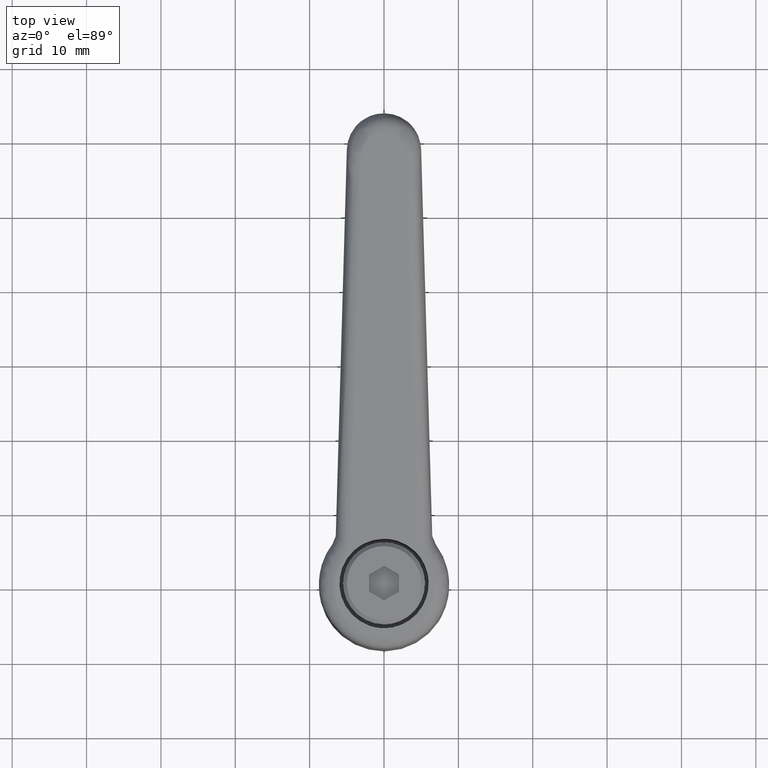
[diagram: clean part render]
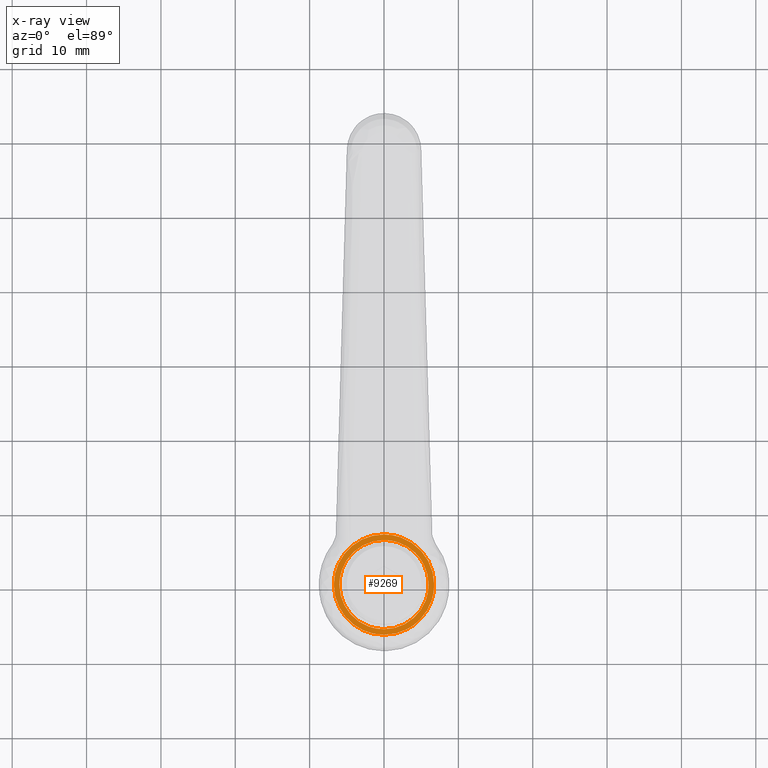
[diagram: x-ray — body ghosted, one internal face saturated and labeled with its STEP entity id]
A machine part, top view, then the same camera in x-ray: the body is ghosted and one INTERNAL B-rep face — a face not visible from any outside direction — is saturated and labeled: STEP entity #9269.
In plain terms, the highlighted face is a freeform B-spline surface patch.
Its self-contained STEP definition (entity closure, byte-faithful):
#1594=CARTESIAN_POINT('',(-6.750000000000000,0.0,20.0));
#1595=VERTEX_POINT('',#1594);
#1596=CARTESIAN_POINT('',(-4.707665824980561,-4.837393972374120,19.999999999999321));
#1597=VERTEX_POINT('',#1596);
#1598=CARTESIAN_POINT('',(-6.750000000000000,0.0,20.0));
#1599=CARTESIAN_POINT('',(-6.750189496485413,-0.589897608623025,19.999999999999890));
#1600=CARTESIAN_POINT('',(-6.612852151886847,-1.629100466197512,19.999999999999851));
#1601=CARTESIAN_POINT('',(-6.102929066108899,-2.975503161294321,19.999999999999439));
#1602=CARTESIAN_POINT('',(-5.469849914714069,-4.009566069573280,19.999999999999670));
#1603=CARTESIAN_POINT('',(-4.969378248059436,-4.582735913719289,19.999999999999108));
#1604=CARTESIAN_POINT('',(-4.707665824980561,-4.837393972374120,19.999999999999321));
#1605=B_SPLINE_CURVE_WITH_KNOTS('',3,(#1598,#1599,#1600,#1601,#1602,#1603,#1604),.UNSPECIFIED.,.F.,.U.,(4,1,1,1,4),(0.000000010771195,1.769646580922205,3.117936891543014,4.297714022964584,5.393207042258798),.UNSPECIFIED.);
#1606=EDGE_CURVE('',#1595,#1597,#1605,.T.);
#1674=CARTESIAN_POINT('',(4.560234012444024,-4.976622125608683,20.000000000000082));
#1675=VERTEX_POINT('',#1674);
#1681=CARTESIAN_POINT('',(6.750000000000000,0.0,20.0));
#1682=VERTEX_POINT('',#1681);
#1683=CARTESIAN_POINT('',(4.560234012444024,-4.976622125608683,20.000000000000082));
#1684=CARTESIAN_POINT('',(5.011651905121081,-4.563256080543949,20.000000000000099));
#1685=CARTESIAN_POINT('',(5.631520279737184,-3.816262399239475,20.000000000000060));
#1686=CARTESIAN_POINT('',(6.265089655749502,-2.597048230217639,20.000000000000039));
#1687=CARTESIAN_POINT('',(6.650066364689526,-1.398961890034407,20.000000000000060));
#1688=CARTESIAN_POINT('',(6.750086430079379,-0.495481833153303,19.999999999999989));
#1689=CARTESIAN_POINT('',(6.750000000000000,0.0,20.0));
#1690=B_SPLINE_CURVE_WITH_KNOTS('',3,(#1683,#1684,#1685,#1686,#1687,#1688,#1689),.UNSPECIFIED.,.F.,.U.,(4,1,1,1,4),(9.225149E-009,1.836192493326632,2.885434685503065,4.109563116587465,5.596001085378621),.UNSPECIFIED.);
#1691=EDGE_CURVE('',#1675,#1682,#1690,.T.);
#1693=CARTESIAN_POINT('',(-0.000000603585625,6.749999999999973,20.0));
#1694=VERTEX_POINT('',#1693);
#1695=CARTESIAN_POINT('',(6.750000000000000,0.0,20.0));
#1696=CARTESIAN_POINT('',(6.750056323362601,0.441789136138231,20.000000000000011));
#1697=CARTESIAN_POINT('',(6.671092494815222,1.242504140112021,20.0));
#1698=CARTESIAN_POINT('',(6.323773551914324,2.468446817196481,20.000000000000011));
#1699=CARTESIAN_POINT('',(5.818250824625091,3.488277363372951,20.0));
#1700=CARTESIAN_POINT('',(5.196924196968071,4.336741409579012,20.000000000000060));
#1701=CARTESIAN_POINT('',(4.491186346003126,5.078090997520415,19.999999999999879));
#1702=CARTESIAN_POINT('',(3.607974469237662,5.750076199964168,20.000000000000011));
#1703=CARTESIAN_POINT('',(2.469250347339621,6.323282269281268,19.999999999999979));
#1704=CARTESIAN_POINT('',(1.270123404314984,6.670986232024943,20.000000000000060));
#1705=CARTESIAN_POINT('',(0.414171630577812,6.750039796443631,19.999999999999929));
#1706=CARTESIAN_POINT('',(-0.000000603585625,6.749999999999973,20.0));
#1707=B_SPLINE_CURVE_WITH_KNOTS('',3,(#1695,#1696,#1697,#1698,#1699,#1700,#1701,#1702,#1703,#1704,#1705,#1706),.UNSPECIFIED.,.F.,.U.,(4,1,1,1,1,1,1,1,1,4),(0.000000041525704,1.325367237503897,2.402226620315705,3.810436617719105,4.721641683915784,5.549952460949395,6.875334782238659,8.035042421115808,9.360423406359173,10.602942074600790),.UNSPECIFIED.);
#1708=EDGE_CURVE('',#1682,#1694,#1707,.T.);
#1710=CARTESIAN_POINT('',(-0.000000603585625,6.749999999999973,20.0));
#1711=CARTESIAN_POINT('',(-0.552245089240394,6.750132890079418,20.000000000000060));
#1712=CARTESIAN_POINT('',(-1.352908356019122,6.651175618226108,19.999999999999901));
#1713=CARTESIAN_POINT('',(-2.567937814014367,6.274434738483345,20.000000000000082));
#1714=CARTESIAN_POINT('',(-3.587777594487129,5.768935741995041,20.000000000000050));
#1715=CARTESIAN_POINT('',(-4.686003992539395,4.922670319219029,19.999999999999879));
#1716=CARTESIAN_POINT('',(-5.538842603945778,3.934016925592583,20.000000000000639));
#1717=CARTESIAN_POINT('',(-6.139797153196066,2.872980955057200,19.999999999998991));
#1718=CARTESIAN_POINT('',(-6.612587900143894,1.601359522471674,20.000000000000782));
#1719=CARTESIAN_POINT('',(-6.750225083288168,0.635095039093704,19.999999999999631));
#1720=CARTESIAN_POINT('',(-6.750000000000000,0.0,20.0));
#1721=B_SPLINE_CURVE_WITH_KNOTS('',3,(#1710,#1711,#1712,#1713,#1714,#1715,#1716,#1717,#1718,#1719,#1720),.UNSPECIFIED.,.F.,.U.,(4,1,1,1,1,1,1,1,4),(0.000000041737021,1.656697272147186,2.402226466331960,3.810436373527907,5.052988838560568,6.543989303707201,7.703696607046512,8.697731753401431,10.602941394214840),.UNSPECIFIED.);
#1722=EDGE_CURVE('',#1694,#1595,#1721,.T.);
#1741=CARTESIAN_POINT('',(0.000000603585494,-6.749999999999973,20.0));
#1742=VERTEX_POINT('',#1741);
#1743=CARTESIAN_POINT('',(-4.707665824980561,-4.837393972374120,19.999999999999321));
#1744=CARTESIAN_POINT('',(-4.454888111297985,-5.083420809926386,19.999999999999300));
#1745=CARTESIAN_POINT('',(-3.931568773957090,-5.518304652385113,19.999999999999542));
#1746=CARTESIAN_POINT('',(-2.953144399796560,-6.108438822743927,19.999999999999510));
#1747=CARTESIAN_POINT('',(-1.655086579437027,-6.608668399030879,19.999999999999829));
#1748=CARTESIAN_POINT('',(-0.596963792418976,-6.750199611316957,19.999999999999869));
#1749=CARTESIAN_POINT('',(0.000000603585494,-6.749999999999973,20.0));
#1750=B_SPLINE_CURVE_WITH_KNOTS('',3,(#1743,#1744,#1745,#1746,#1747,#1748,#1749),.UNSPECIFIED.,.F.,.U.,(4,1,1,1,4),(0.000000011847090,1.058224918802663,2.035057174699422,3.418884393992478,5.209735236947490),.UNSPECIFIED.);
#1751=EDGE_CURVE('',#1597,#1742,#1750,.T.);
#1753=CARTESIAN_POINT('',(0.000000603585494,-6.749999999999973,20.0));
#1754=CARTESIAN_POINT('',(0.547647454783456,-6.750146369008727,20.000000000000028));
#1755=CARTESIAN_POINT('',(1.460290977897365,-6.638278709409208,20.000000000000011));
#1756=CARTESIAN_POINT('',(2.526590755746801,-6.279524159648763,20.000000000000050));
#1757=CARTESIAN_POINT('',(3.536417830372657,-5.789240769722080,20.000000000000050));
#1758=CARTESIAN_POINT('',(4.156561170191329,-5.346715601951316,20.000000000000121));
#1759=CARTESIAN_POINT('',(4.560234012444024,-4.976622125608683,20.000000000000082));
#1760=B_SPLINE_CURVE_WITH_KNOTS('',3,(#1753,#1754,#1755,#1756,#1757,#1758,#1759),.UNSPECIFIED.,.F.,.U.,(4,1,1,1,4),(0.000000012162354,1.642906533845293,2.738158837737429,3.364034620636019,5.006940779340444),.UNSPECIFIED.);
#1761=EDGE_CURVE('',#1742,#1675,#1760,.T.);
#1815=CARTESIAN_POINT('',(0.000001315846693,-5.999999999999855,20.0));
#1816=VERTEX_POINT('',#1815);
#1817=CARTESIAN_POINT('',(4.299906057969248,-4.184592195031822,20.0));
#1818=VERTEX_POINT('',#1817);
#1819=CARTESIAN_POINT('',(0.000001315846693,-5.999999999999855,20.0));
#1820=CARTESIAN_POINT('',(0.524358577713654,-6.000179221801800,20.000000000000050));
#1821=CARTESIAN_POINT('',(1.398153476846222,-5.884668836319229,19.999999999999979));
#1822=CARTESIAN_POINT('',(2.410708860927104,-5.515528303705615,19.999999999999950));
#1823=CARTESIAN_POINT('',(3.360795066285426,-5.012593481145598,20.000000000000131));
#1824=CARTESIAN_POINT('',(3.934322649480240,-4.560495449482708,19.999999999999890));
#1825=CARTESIAN_POINT('',(4.299906057969248,-4.184592195031822,20.0));
#1826=B_SPLINE_CURVE_WITH_KNOTS('',3,(#1819,#1820,#1821,#1822,#1823,#1824,#1825),.UNSPECIFIED.,.F.,.U.,(4,1,1,1,4),(0.000000015613442,1.573022503714694,2.621684015722039,3.220938157565421,4.793960645683214),.UNSPECIFIED.);
#1827=EDGE_CURVE('',#1816,#1818,#1826,.T.);
#1829=CARTESIAN_POINT('',(-6.0,0.0,20.0));
#1830=VERTEX_POINT('',#1829);
#1831=CARTESIAN_POINT('',(-6.0,0.0,20.0));
#1832=CARTESIAN_POINT('',(-6.000091934797042,-0.466331877564008,20.0));
#1833=CARTESIAN_POINT('',(-5.890742645441808,-1.398964488954554,20.000000000000021));
#1834=CARTESIAN_POINT('',(-5.492805496610491,-2.490062643781756,19.999999999999989));
#1835=CARTESIAN_POINT('',(-4.978347313124897,-3.385197845810340,20.000000000000050));
#1836=CARTESIAN_POINT('',(-4.478214500332590,-4.026061770993108,20.000000000000011));
#1837=CARTESIAN_POINT('',(-3.819272299304988,-4.653418035417638,19.999999999999979));
#1838=CARTESIAN_POINT('',(-3.137820810019328,-5.139642381881403,20.000000000000050));
#1839=CARTESIAN_POINT('',(-2.283533742962245,-5.576254149961433,19.999999999999879));
#1840=CARTESIAN_POINT('',(-1.251698169623974,-5.910141161687714,20.000000000000309));
#1841=CARTESIAN_POINT('',(-0.441791142346633,-6.000073322419865,19.999999999999730));
#1842=CARTESIAN_POINT('',(0.000001315846693,-5.999999999999855,20.0));
#1843=B_SPLINE_CURVE_WITH_KNOTS('',3,(#1831,#1832,#1833,#1834,#1835,#1836,#1837,#1838,#1839,#1840,#1841,#1842),.UNSPECIFIED.,.F.,.U.,(4,1,1,1,1,1,1,1,1,4),(0.000000054596907,1.398988284124295,2.798004511964821,3.460694513887109,4.491552461369225,5.227830650530883,6.185038682492327,6.994995796519165,8.099471708291244,9.424837838889507),.UNSPECIFIED.);
#1844=EDGE_CURVE('',#1830,#1816,#1843,.T.);
#1846=CARTESIAN_POINT('',(-0.000001315846816,5.999999999999855,20.0));
#1847=VERTEX_POINT('',#1846);
#1848=CARTESIAN_POINT('',(-0.000001315846816,5.999999999999855,20.0));
#1849=CARTESIAN_POINT('',(-0.343607272268329,6.000027185608661,19.999999999999989));
#1850=CARTESIAN_POINT('',(-1.055372073787163,5.938705066836424,19.999999999999989));
#1851=CARTESIAN_POINT('',(-1.959572470121357,5.694450673611708,20.000000000000071));
#1852=CARTESIAN_POINT('',(-2.793301934164244,5.330970249024866,19.999999999999911));
#1853=CARTESIAN_POINT('',(-3.508694097380481,4.896195209407896,20.000000000000149));
#1854=CARTESIAN_POINT('',(-4.205435681342218,4.309938572120863,19.999999999999549));
#1855=CARTESIAN_POINT('',(-4.776002309344000,3.664656032829015,20.000000000000600));
#1856=CARTESIAN_POINT('',(-5.304137469478002,2.863718403655071,19.999999999999261));
#1857=CARTESIAN_POINT('',(-5.683919054542520,2.006953161470853,20.000000000000291));
#1858=CARTESIAN_POINT('',(-5.941069643032088,1.006269351701033,19.999999999999911));
#1859=CARTESIAN_POINT('',(-6.000040529448356,0.368152007352242,20.000000000000028));
#1860=CARTESIAN_POINT('',(-6.0,0.0,20.0));
#1861=B_SPLINE_CURVE_WITH_KNOTS('',3,(#1848,#1849,#1850,#1851,#1852,#1853,#1854,#1855,#1856,#1857,#1858,#1859,#1860),.UNSPECIFIED.,.F.,.U.,(4,1,1,1,1,1,1,1,1,1,4),(0.000000055056223,1.030823662191740,2.135313798062620,2.798004072059266,3.755212894146057,4.638801972037305,5.522349661224626,6.332303021391571,7.510422651033029,8.320380726574697,9.424836355614239),.UNSPECIFIED.);
#1862=EDGE_CURVE('',#1847,#1830,#1861,.T.);
#1864=CARTESIAN_POINT('',(4.423663750706115,4.053541055443965,20.0));
#1865=VERTEX_POINT('',#1864);
#1866=CARTESIAN_POINT('',(4.423663750706115,4.053541055443965,20.0));
#1867=CARTESIAN_POINT('',(4.161153077902315,4.340081848315799,20.000000000000050));
#1868=CARTESIAN_POINT('',(3.560832915339269,4.879294194543858,19.999999999999861));
#1869=CARTESIAN_POINT('',(2.684962079988443,5.393796871867874,20.000000000000121));
#1870=CARTESIAN_POINT('',(1.816143529759354,5.736389589393850,19.999999999999989));
#1871=CARTESIAN_POINT('',(0.984467946114480,5.945327169930681,19.999999999999918));
#1872=CARTESIAN_POINT('',(0.336793189223287,6.000023856448273,20.000000000000099));
#1873=CARTESIAN_POINT('',(-0.000001315846816,5.999999999999855,20.0));
#1874=B_SPLINE_CURVE_WITH_KNOTS('',3,(#1866,#1867,#1868,#1869,#1870,#1871,#1872,#1873),.UNSPECIFIED.,.F.,.U.,(4,1,1,1,1,4),(0.000000014981517,1.165833479364666,2.409396683497063,3.031163298671582,3.963837943599524,4.974224280832575),.UNSPECIFIED.);
#1875=EDGE_CURVE('',#1865,#1847,#1874,.T.);
#1940=CARTESIAN_POINT('',(6.0,0.0,20.0));
#1941=VERTEX_POINT('',#1940);
#1942=CARTESIAN_POINT('',(4.299906057969248,-4.184592195031822,20.0));
#1943=CARTESIAN_POINT('',(4.653276137881965,-3.821700068102413,19.999999999999989));
#1944=CARTESIAN_POINT('',(5.077075450027367,-3.258237648629352,19.999999999999979));
#1945=CARTESIAN_POINT('',(5.547590750904520,-2.332628435930269,20.000000000000011));
#1946=CARTESIAN_POINT('',(5.892443900336883,-1.350601436949543,19.999999999999989));
#1947=CARTESIAN_POINT('',(6.000146039195085,-0.506513419744188,20.0));
#1948=CARTESIAN_POINT('',(6.0,0.0,20.0));
#1949=B_SPLINE_CURVE_WITH_KNOTS('',3,(#1942,#1943,#1944,#1945,#1946,#1947,#1948),.UNSPECIFIED.,.F.,.U.,(4,1,1,1,4),(0.000000015974080,1.519507078001557,2.098378185597909,3.111368384978372,4.630875447010492),.UNSPECIFIED.);
#1950=EDGE_CURVE('',#1818,#1941,#1949,.T.);
#1982=CARTESIAN_POINT('',(6.0,0.0,20.0));
#1983=CARTESIAN_POINT('',(6.000158583537258,0.533158883330049,20.0));
#1984=CARTESIAN_POINT('',(5.863168612911596,1.553003159867017,19.999999999999989));
#1985=CARTESIAN_POINT('',(5.297365326771574,2.936306984886711,19.999999999999989));
#1986=CARTESIAN_POINT('',(4.736933291000771,3.711789140262886,20.000000000000028));
#1987=CARTESIAN_POINT('',(4.423663750706115,4.053541055443965,20.0));
#1988=B_SPLINE_CURVE_WITH_KNOTS('',3,(#1982,#1983,#1984,#1985,#1986,#1987),.UNSPECIFIED.,.F.,.U.,(4,1,1,4),(0.000000015615645,1.599440654386326,3.059793861532921,4.450614422325269),.UNSPECIFIED.);
#1989=EDGE_CURVE('',#1941,#1865,#1988,.T.);
#9248=CARTESIAN_POINT('',(-7.424324973834381,7.424324973834352,20.0));
#9249=CARTESIAN_POINT('',(7.424325335932597,7.424324973834352,20.0));
#9250=CARTESIAN_POINT('',(-7.424324973834381,-7.424325335932569,20.0));
#9251=CARTESIAN_POINT('',(7.424325335932597,-7.424325335932569,20.0));
#9252=B_SPLINE_SURFACE_WITH_KNOTS('',1,1,((#9248,#9250),(#9249,#9251)),.UNSPECIFIED.,.F.,.F.,.U.,(2,2),(2,2),(0.0,14.848650309766979),(0.0,14.848650309766921),.UNSPECIFIED.);
#9253=ORIENTED_EDGE('',*,*,#1722,.F.);
#9254=ORIENTED_EDGE('',*,*,#1708,.F.);
#9255=ORIENTED_EDGE('',*,*,#1691,.F.);
#9256=ORIENTED_EDGE('',*,*,#1761,.F.);
#9257=ORIENTED_EDGE('',*,*,#1751,.F.);
#9258=ORIENTED_EDGE('',*,*,#1606,.F.);
#9259=EDGE_LOOP('',(#9253,#9254,#9255,#9256,#9257,#9258));
#9260=FACE_OUTER_BOUND('',#9259,.T.);
#9261=ORIENTED_EDGE('',*,*,#1844,.T.);
#9262=ORIENTED_EDGE('',*,*,#1827,.T.);
#9263=ORIENTED_EDGE('',*,*,#1950,.T.);
#9264=ORIENTED_EDGE('',*,*,#1989,.T.);
#9265=ORIENTED_EDGE('',*,*,#1875,.T.);
#9266=ORIENTED_EDGE('',*,*,#1862,.T.);
#9267=EDGE_LOOP('',(#9261,#9262,#9263,#9264,#9265,#9266));
#9268=FACE_BOUND('',#9267,.T.);
#9269=ADVANCED_FACE('',(#9260,#9268),#9252,.T.);